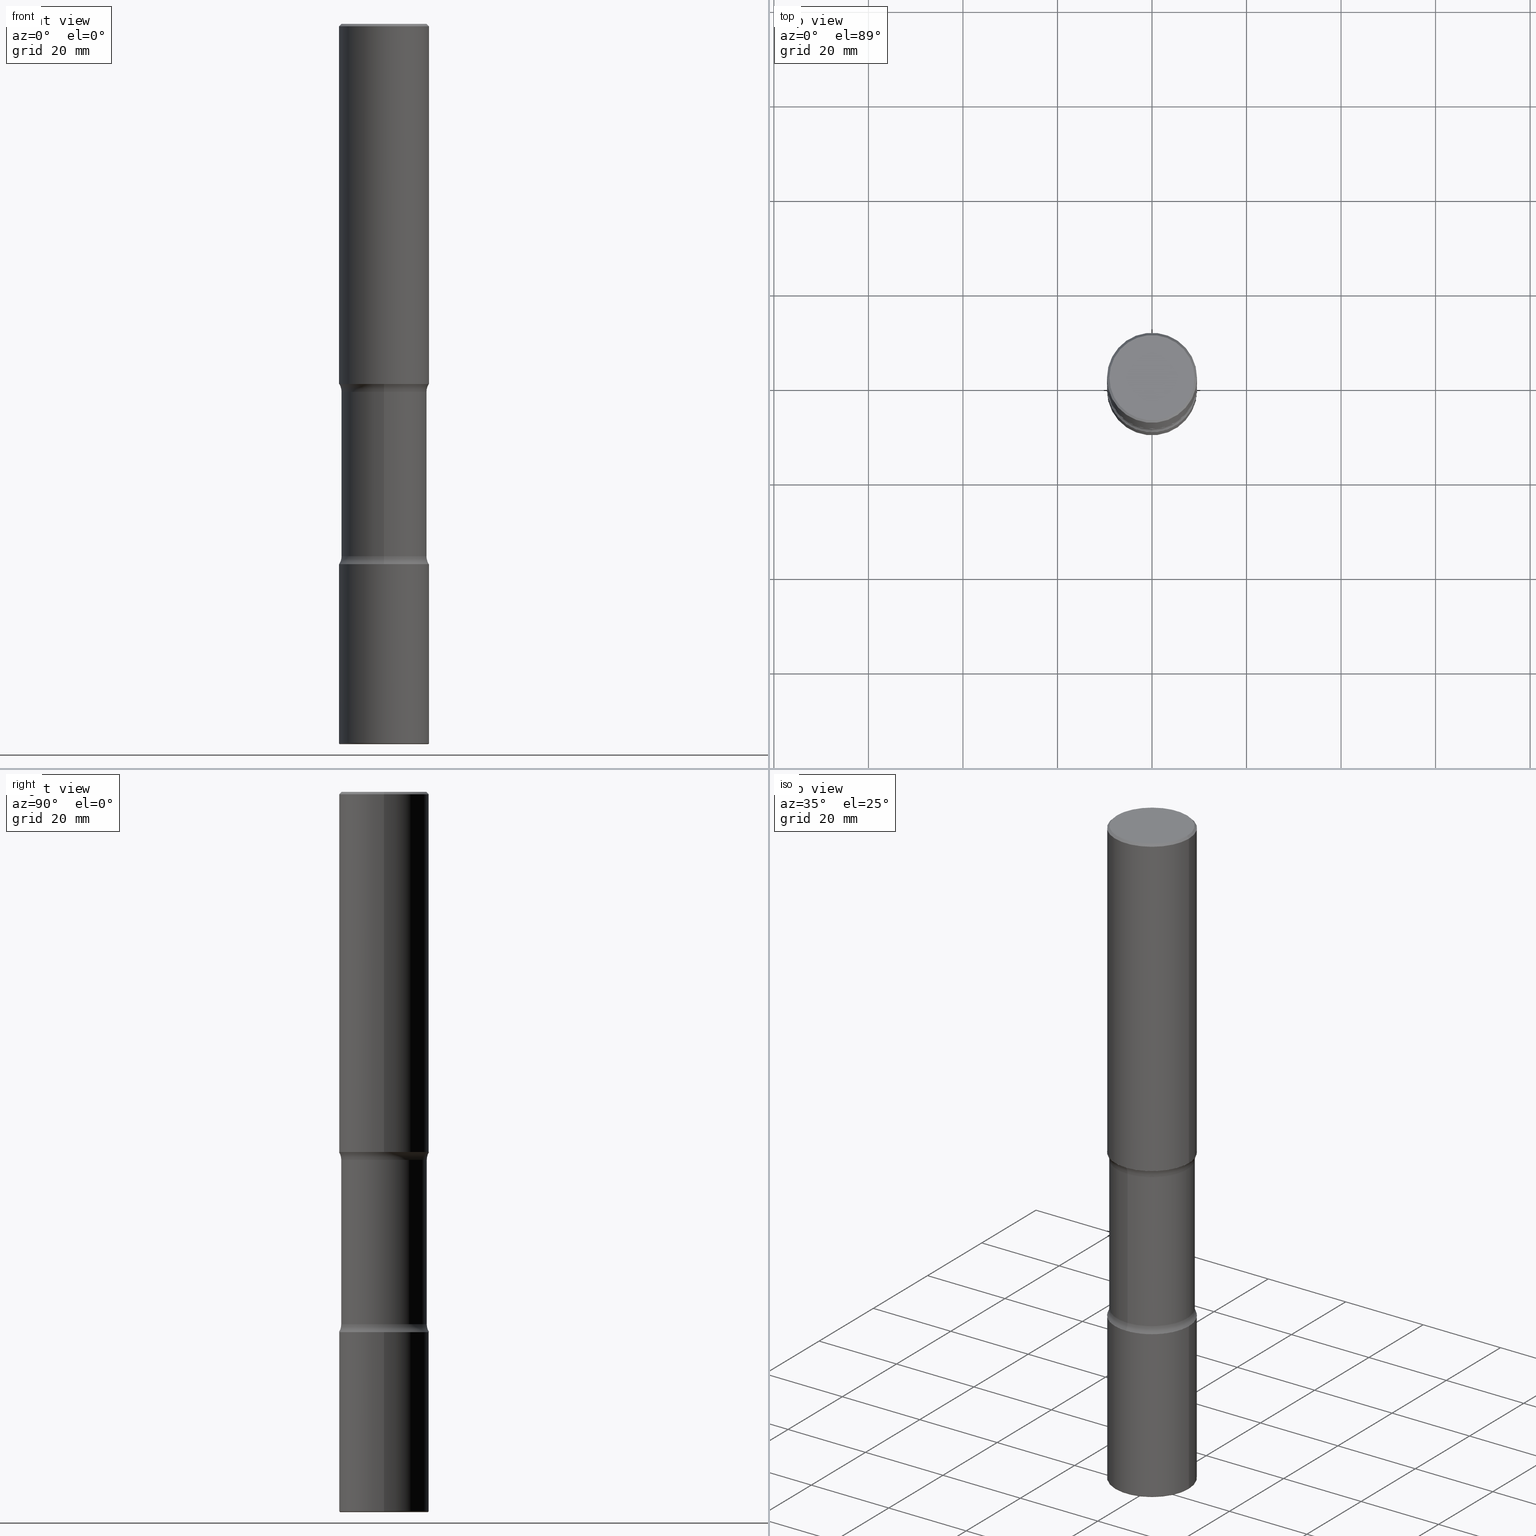
[diagram: canonical four-view strip — front | top / right | iso, engineering-drawing reading convention]
A machine part, canonical four-view strip (front | top / right | iso — engineering-drawing reading convention). The complete STEP part file that produces these views, byte-faithful:
ISO-10303-21;
HEADER;
FILE_DESCRIPTION (( 'STEP AP203' ),
    '1' );
FILE_NAME ('37928.STEP',
    '2024-03-02T01:28:42',
    ( '' ),
    ( '' ),
    'SwSTEP 2.0',
    'SolidWorks 2023',
    '' );
FILE_SCHEMA (( 'CONFIG_CONTROL_DESIGN' ));
ENDSEC;

DATA;
#1 = EDGE_CURVE ( 'NONE', #549, #436, #395, .T. ) ;
#2 = DIRECTION ( 'NONE',  ( 2.508247471065963170E-29, -3.401578717594097873E-15, -1.000000000000000000 ) ) ;
#3 = DIRECTION ( 'NONE',  ( 2.445468806185136597E-29, -3.491481338843145583E-15, -1.000000000000000000 ) ) ;
#4 = DIRECTION ( 'NONE',  ( -2.445468806185136597E-29, 3.491481338843145583E-15, 1.000000000000000000 ) ) ;
#5 = FACE_OUTER_BOUND ( 'NONE', #156, .T. ) ;
#6 = ADVANCED_FACE ( 'NONE', ( #363 ), #288, .F. ) ;
#7 = CIRCLE ( 'NONE', #439, 0.3750000000000001110 ) ;
#8 = LOCAL_TIME ( 20, 28, 42.00000000000000000, #30 ) ;
#9 = PERSON ( 'UNSPECIFIED', 'UNSPECIFIED', 'UNSPECIFIED', ('UNSPECIFIED'), ('UNSPECIFIED'), ('UNSPECIFIED') ) ;
#10 = CARTESIAN_POINT ( 'NONE',  ( 7.402053284434616373E-29, -1.084094290665388719E-14, -3.065847835955329614 ) ) ;
#11 = DIRECTION ( 'NONE',  ( 1.000000000000000000, -6.982962677686265922E-15, 0.000000000000000000 ) ) ;
#12 = CARTESIAN_POINT ( 'NONE',  ( 7.336406418555407548E-29, -1.047444401652943320E-14, -2.999999999999999112 ) ) ;
#13 = ORIENTED_EDGE ( 'NONE', *, *, #516, .F. ) ;
#14 = DIRECTION ( 'NONE',  ( 2.508247471065963170E-29, -3.401578717594097873E-15, -1.000000000000000000 ) ) ;
#15 = FACE_OUTER_BOUND ( 'NONE', #211, .T. ) ;
#16 = AXIS2_PLACEMENT_3D ( 'NONE', #155, #536, #325 ) ;
#17 = CC_DESIGN_APPROVAL ( #367, ( #468 ) ) ;
#18 = DIRECTION ( 'NONE',  ( 6.982962677686265133E-15, 1.000000000000000000, -3.067338098149347905E-15 ) ) ;
#19 = VERTEX_POINT ( 'NONE', #275 ) ;
#20 = ORIENTED_EDGE ( 'NONE', *, *, #39, .F. ) ;
#21 = CARTESIAN_POINT ( 'NONE',  ( -0.3750000000000003886, -1.564828436313191776E-14, -4.499999999999999112 ) ) ;
#22 = ORIENTED_EDGE ( 'NONE', *, *, #58, .F. ) ;
#23 = MANIFOLD_SOLID_BREP ( 'Body-Move/Copy2[2]', #177 ) ;
#24 = DATE_AND_TIME ( #464, #88 ) ;
#25 = DIRECTION ( 'NONE',  ( 1.000000000000000000, -6.982962677686266711E-15, 4.883557194083113462E-29 ) ) ;
#26 = ORIENTED_EDGE ( 'NONE', *, *, #49, .F. ) ;
#27 = ORIENTED_EDGE ( 'NONE', *, *, #39, .T. ) ;
#28 = AXIS2_PLACEMENT_3D ( 'NONE', #414, #203, #18 ) ;
#29 = AXIS2_PLACEMENT_3D ( 'NONE', #135, #272, #558 ) ;
#30 = COORDINATED_UNIVERSAL_TIME_OFFSET ( 5, 0, .BEHIND. ) ;
#31 = PLANE ( 'NONE',  #117 ) ;
#32 = ORIENTED_EDGE ( 'NONE', *, *, #157, .T. ) ;
#33 = ORIENTED_EDGE ( 'NONE', *, *, #173, .F. ) ;
#34 = CALENDAR_DATE ( 2024, 1, 3 ) ;
#35 = CYLINDRICAL_SURFACE ( 'NONE', #323, 0.3750000000000003886 ) ;
#36 = ORIENTED_EDGE ( 'NONE', *, *, #162, .T. ) ;
#37 = LINE ( 'NONE', #67, #48 ) ;
#38 = ORIENTED_EDGE ( 'NONE', *, *, #556, .T. ) ;
#39 = EDGE_CURVE ( 'NONE', #382, #310, #102, .T. ) ;
#40 = CIRCLE ( 'NONE', #28, 0.3562500000000000111 ) ;
#41 = APPROVAL_DATE_TIME ( #503, #367 ) ;
#42 = AXIS2_PLACEMENT_3D ( 'NONE', #217, #261, #540 ) ;
#43 = EDGE_LOOP ( 'NONE', ( #508, #534, #158, #297 ) ) ;
#44 = ORIENTED_EDGE ( 'NONE', *, *, #357, .T. ) ;
#45 = APPLICATION_PROTOCOL_DEFINITION ( 'international standard', 'config_control_design', 1994, #401 ) ;
#46 = ORIENTED_EDGE ( 'NONE', *, *, #214, .T. ) ;
#47 = AXIS2_PLACEMENT_3D ( 'NONE', #10, #446, #64 ) ;
#48 = VECTOR ( 'NONE', #377, 39.37007874015748143 ) ;
#49 = EDGE_CURVE ( 'NONE', #152, #186, #314, .T. ) ;
#50 = EDGE_LOOP ( 'NONE', ( #336, #451, #542, #22 ) ) ;
#51 = VERTEX_POINT ( 'NONE', #399 ) ;
#52 = ADVANCED_FACE ( 'NONE', ( #5 ), #193, .T. ) ;
#53 = DIRECTION ( 'NONE',  ( 6.982962677686265922E-15, 1.000000000000000000, -3.401578717594097873E-15 ) ) ;
#54 = CIRCLE ( 'NONE', #479, 0.3750000000000003886 ) ;
#55 = DIRECTION ( 'NONE',  ( -2.445468806185136597E-29, 3.491481338843145583E-15, 1.000000000000000000 ) ) ;
#56 = ORIENTED_EDGE ( 'NONE', *, *, #393, .T. ) ;
#57 = DIRECTION ( 'NONE',  ( -2.445468806185136597E-29, 3.491481338843145583E-15, 1.000000000000000000 ) ) ;
#58 = EDGE_CURVE ( 'NONE', #76, #186, #7, .T. ) ;
#59 = DIRECTION ( 'NONE',  ( -2.445468806185136597E-29, 3.491481338843145583E-15, 1.000000000000000000 ) ) ;
#60 = DIRECTION ( 'NONE',  ( 2.508247471065962609E-29, -3.401578717594097873E-15, -1.000000000000000000 ) ) ;
#61 = EDGE_CURVE ( 'NONE', #436, #251, #541, .T. ) ;
#62 = DIRECTION ( 'NONE',  ( 6.860497997771531562E-15, 1.000000000000000000, 0.000000000000000000 ) ) ;
#63 = ORIENTED_EDGE ( 'NONE', *, *, #489, .T. ) ;
#64 = DIRECTION ( 'NONE',  ( 6.982962677686265922E-15, 1.000000000000000000, -3.401578717594097873E-15 ) ) ;
#65 = AXIS2_PLACEMENT_3D ( 'NONE', #95, #373, #320 ) ;
#66 = DIRECTION ( 'NONE',  ( 6.982962677686265133E-15, 1.000000000000000000, -3.067338098149347905E-15 ) ) ;
#67 = CARTESIAN_POINT ( 'NONE',  ( 0.3750000000000003886, -2.618611004132352383E-15, 1.828566290923477884E-29 ) ) ;
#68 = LINE ( 'NONE', #250, #221 ) ;
#69 = CALENDAR_DATE ( 2024, 1, 3 ) ;
#70 = DIRECTION ( 'NONE',  ( 2.438088387897960049E-29, -3.491481338843145188E-15, -1.000000000000000000 ) ) ;
#71 = ORIENTED_EDGE ( 'NONE', *, *, #58, .T. ) ;
#72 = ORIENTED_EDGE ( 'NONE', *, *, #98, .F. ) ;
#73 = EDGE_CURVE ( 'NONE', #436, #549, #509, .T. ) ;
#74 = PERSON_AND_ORGANIZATION_ROLE ( 'creator' ) ;
#75 = DIRECTION ( 'NONE',  ( -2.445468806185136597E-29, 3.491481338843145583E-15, 1.000000000000000000 ) ) ;
#76 = VERTEX_POINT ( 'NONE', #106 ) ;
#77 = AXIS2_PLACEMENT_3D ( 'NONE', #277, #55, #236 ) ;
#78 = PERSON_AND_ORGANIZATION ( #9, #127 ) ;
#79 = ADVANCED_FACE ( 'NONE', ( #450 ), #282, .F. ) ;
#80 = CARTESIAN_POINT ( 'NONE',  ( -0.3750000000000002220, 2.664535259100377275E-15, -1.844600658845590719E-29 ) ) ;
#81 = EDGE_CURVE ( 'NONE', #368, #51, #153, .T. ) ;
#82 = FACE_OUTER_BOUND ( 'NONE', #287, .T. ) ;
#83 = ORIENTED_EDGE ( 'NONE', *, *, #90, .F. ) ;
#84 = MECHANICAL_CONTEXT ( 'NONE', #401, 'mechanical' ) ;
#85 = CARTESIAN_POINT ( 'NONE',  ( -2.508369580435107128E-15, -0.3562500000000154987, -4.434152164044668609 ) ) ;
#86 = CARTESIAN_POINT ( 'NONE',  ( 1.467281283711081958E-28, -2.094888803305887271E-14, -6.000000000000000888 ) ) ;
#87 = VECTOR ( 'NONE', #229, 39.37007874015748143 ) ;
#88 = LOCAL_TIME ( 20, 28, 42.00000000000000000, #379 ) ;
#89 = DIRECTION ( 'NONE',  ( -6.982962677686266711E-15, -1.000000000000000000, 3.491481338843145583E-15 ) ) ;
#90 = EDGE_CURVE ( 'NONE', #408, #445, #366, .T. ) ;
#91 = CARTESIAN_POINT ( 'NONE',  ( 7.407401089244291879E-29, -1.083328454578828421E-14, -3.065847835955329614 ) ) ;
#92 = PRODUCT_RELATED_PRODUCT_CATEGORY ( 'detail', '', ( #197 ) ) ;
#93 = EDGE_CURVE ( 'NONE', #207, #388, #403, .T. ) ;
#94 = DIRECTION ( 'NONE',  ( 1.000000000000000000, -6.982962677686266711E-15, 4.876176775795935793E-29 ) ) ;
#95 = CARTESIAN_POINT ( 'NONE',  ( 1.467281283711081958E-28, -2.094888803305887271E-14, -6.000000000000000888 ) ) ;
#96 = AXIS2_PLACEMENT_3D ( 'NONE', #527, #238, #53 ) ;
#97 = AXIS2_PLACEMENT_3D ( 'NONE', #220, #123, #255 ) ;
#98 = EDGE_CURVE ( 'NONE', #494, #505, #291, .T. ) ;
#99 = FACE_OUTER_BOUND ( 'NONE', #50, .T. ) ;
#100 = CARTESIAN_POINT ( 'NONE',  ( 0.000000000000000000, 0.000000000000000000, 0.000000000000000000 ) ) ;
#101 = CARTESIAN_POINT ( 'NONE',  ( 0.000000000000000000, 0.000000000000000000, 0.000000000000000000 ) ) ;
#102 = LINE ( 'NONE', #356, #187 ) ;
#103 = AXIS2_PLACEMENT_3D ( 'NONE', #538, #243, #412 ) ;
#104 = LOCAL_TIME ( 20, 28, 42.00000000000000000, #130 ) ;
#105 = DIRECTION ( 'NONE',  ( 1.000000000000000000, -6.982962677686266711E-15, 4.876176775795935793E-29 ) ) ;
#106 = CARTESIAN_POINT ( 'NONE',  ( -0.3750000000000001110, 2.548781377355487113E-15, -0.02000000000000006981 ) ) ;
#107 = ORIENTED_EDGE ( 'NONE', *, *, #214, .F. ) ;
#108 = EDGE_CURVE ( 'NONE', #431, #76, #68, .T. ) ;
#109 = FACE_OUTER_BOUND ( 'NONE', #199, .T. ) ;
#110 = ORIENTED_EDGE ( 'NONE', *, *, #489, .F. ) ;
#111 = DIRECTION ( 'NONE',  ( -2.445468806185136597E-29, 3.491481338843145583E-15, 1.000000000000000000 ) ) ;
#112 = ORIENTED_EDGE ( 'NONE', *, *, #61, .T. ) ;
#113 = DESIGN_CONTEXT ( 'detailed design', #458, 'design' ) ;
#114 = CLOSED_SHELL ( 'NONE', ( #52, #241, #169, #6, #79, #278, #259, #420 ) ) ;
#115 = DIRECTION ( 'NONE',  ( 1.000000000000000000, -6.982962677686267499E-15, 0.000000000000000000 ) ) ;
#116 = CIRCLE ( 'NONE', #29, 0.3750000000000003886 ) ;
#117 = AXIS2_PLACEMENT_3D ( 'NONE', #513, #70, #302 ) ;
#118 = APPLICATION_PROTOCOL_DEFINITION ( 'international standard', 'config_control_design', 1994, #458 ) ;
#119 = DIRECTION ( 'NONE',  ( -2.445468806185136597E-29, 3.491481338843145583E-15, 1.000000000000000000 ) ) ;
#120 = ORIENTED_EDGE ( 'NONE', *, *, #283, .T. ) ;
#121 = ADVANCED_FACE ( 'NONE', ( #148 ), #488, .T. ) ;
#122 = PERSON_AND_ORGANIZATION_ROLE ( 'design_supplier' ) ;
#123 = DIRECTION ( 'NONE',  ( 2.508247471065963170E-29, -3.401578717594097873E-15, -1.000000000000000000 ) ) ;
#124 = DATE_AND_TIME ( #34, #469 ) ;
#125 = CARTESIAN_POINT ( 'NONE',  ( 2.618611004132426142E-15, 0.3749999999999898415, -3.000000000000000444 ) ) ;
#126 = TOROIDAL_SURFACE ( 'NONE', #47, 0.4812499999999999556, 0.1249999999999999584 ) ;
#127 = ORGANIZATION ( 'UNSPECIFIED', 'UNSPECIFIED', '' ) ;
#128 = DIRECTION ( 'NONE',  ( 1.000000000000000000, -6.982962677686265922E-15, 0.000000000000000000 ) ) ;
#129 = ORIENTED_EDGE ( 'NONE', *, *, #437, .F. ) ;
#130 = COORDINATED_UNIVERSAL_TIME_OFFSET ( 5, 0, .BEHIND. ) ;
#131 = CARTESIAN_POINT ( 'NONE',  ( 7.407401089244291879E-29, -1.083328454578828421E-14, -3.065847835955329614 ) ) ;
#132 = ORIENTED_EDGE ( 'NONE', *, *, #224, .F. ) ;
#133 = ORIENTED_EDGE ( 'NONE', *, *, #393, .F. ) ;
#134 = CC_DESIGN_DATE_AND_TIME_ASSIGNMENT ( #124, #252, ( #425 ) ) ;
#135 = CARTESIAN_POINT ( 'NONE',  ( 7.336406418555407548E-29, -1.047444401652943320E-14, -2.999999999999999112 ) ) ;
#136 = CARTESIAN_POINT ( 'NONE',  ( 0.000000000000000000, 0.000000000000000000, 0.000000000000000000 ) ) ;
#137 = TOROIDAL_SURFACE ( 'NONE', #77, 0.3650000000000003242, 0.01000000000000061083 ) ;
#138 = CIRCLE ( 'NONE', #145, 0.3750000000000002776 ) ;
#139 = CARTESIAN_POINT ( 'NONE',  ( 1.100460962783311244E-28, -1.571166602479415374E-14, -4.499999999999999112 ) ) ;
#140 = DIRECTION ( 'NONE',  ( -1.000000000000000000, 6.982962677686265922E-15, -4.876176775795935793E-29 ) ) ;
#141 = EDGE_LOOP ( 'NONE', ( #347, #32 ) ) ;
#142 = ADVANCED_FACE ( 'NONE', ( #268 ), #146, .T. ) ;
#143 = DIRECTION ( 'NONE',  ( -2.445468806185136877E-29, 3.491481338843145188E-15, 1.000000000000000000 ) ) ;
#144 = CIRCLE ( 'NONE', #342, 0.3750000000000003886 ) ;
#145 = AXIS2_PLACEMENT_3D ( 'NONE', #521, #438, #354 ) ;
#146 = CYLINDRICAL_SURFACE ( 'NONE', #484, 0.3750000000000003886 ) ;
#147 = DIRECTION ( 'NONE',  ( 2.508247471065963170E-29, -3.401578717594097873E-15, -1.000000000000000000 ) ) ;
#148 = FACE_OUTER_BOUND ( 'NONE', #183, .T. ) ;
#149 = ORIENTED_EDGE ( 'NONE', *, *, #496, .F. ) ;
#150 = CARTESIAN_POINT ( 'NONE',  ( 0.3750000000000006661, -2.353258422380279265E-14, -5.989999999999999325 ) ) ;
#151 = EDGE_CURVE ( 'NONE', #505, #445, #520, .T. ) ;
#152 = VERTEX_POINT ( 'NONE', #154 ) ;
#153 = CIRCLE ( 'NONE', #103, 0.3750000000000003886 ) ;
#154 = CARTESIAN_POINT ( 'NONE',  ( 0.3550000000000000377, -2.538996582575041048E-15, 4.268512490117958041E-18 ) ) ;
#155 = CARTESIAN_POINT ( 'NONE',  ( 7.242238421234168109E-29, -1.060929794840300496E-14, -2.999999999999999112 ) ) ;
#156 = EDGE_LOOP ( 'NONE', ( #38, #419, #245, #83 ) ) ;
#157 = EDGE_CURVE ( 'NONE', #51, #368, #352, .T. ) ;
#158 = ORIENTED_EDGE ( 'NONE', *, *, #151, .T. ) ;
#159 = DIRECTION ( 'NONE',  ( 2.508247471065963170E-29, -3.401578717594097873E-15, -1.000000000000000000 ) ) ;
#160 = CARTESIAN_POINT ( 'NONE',  ( -2.572686749164255311E-15, -0.3750000000000111577, -2.999999999999998224 ) ) ;
#161 = CARTESIAN_POINT ( 'NONE',  ( -2.444052411705960129E-15, -0.3562500000000208278, -5.999999999999998224 ) ) ;
#162 = EDGE_CURVE ( 'NONE', #368, #445, #201, .T. ) ;
#163 = DIRECTION ( 'NONE',  ( 1.000000000000000000, -6.982962677686265922E-15, 0.000000000000000000 ) ) ;
#164 = EDGE_LOOP ( 'NONE', ( #512, #27, #176, #292 ) ) ;
#165 = AXIS2_PLACEMENT_3D ( 'NONE', #447, #60, #239 ) ;
#166 = CARTESIAN_POINT ( 'NONE',  ( 3.360550788636589613E-15, 0.4812499999999890754, -3.065847835955331391 ) ) ;
#167 = AXIS2_PLACEMENT_3D ( 'NONE', #249, #260, #544 ) ;
#168 = COORDINATED_UNIVERSAL_TIME_OFFSET ( 5, 0, .BEHIND. ) ;
#169 = ADVANCED_FACE ( 'NONE', ( #407 ), #126, .F. ) ;
#170 = DIRECTION ( 'NONE',  ( -2.445468806185136597E-29, 3.491481338843145583E-15, 1.000000000000000000 ) ) ;
#171 = CC_DESIGN_PERSON_AND_ORGANIZATION_ASSIGNMENT ( #344, #122, ( #315 ) ) ;
#172 = VERTEX_POINT ( 'NONE', #319 ) ;
#173 = EDGE_CURVE ( 'NONE', #507, #172, #369, .T. ) ;
#174 = DATE_TIME_ROLE ( 'creation_date' ) ;
#175 = CARTESIAN_POINT ( 'NONE',  ( 2.618611004132461246E-15, 0.3749999999999845124, -4.500000000000000888 ) ) ;
#176 = ORIENTED_EDGE ( 'NONE', *, *, #441, .F. ) ;
#177 = CLOSED_SHELL ( 'NONE', ( #121, #547, #301, #410, #345, #262 ) ) ;
#178 = LOCAL_TIME ( 20, 28, 42.00000000000000000, #389 ) ;
#179 = PERSON_AND_ORGANIZATION ( #9, #127 ) ;
#180 = ORIENTED_EDGE ( 'NONE', *, *, #476, .F. ) ;
#181 = APPROVAL_STATUS ( 'not_yet_approved' ) ;
#182 = LINE ( 'NONE', #270, #353 ) ;
#183 = EDGE_LOOP ( 'NONE', ( #329, #285, #514, #13 ) ) ;
#184 = ADVANCED_FACE ( 'NONE', ( #109 ), #449, .T. ) ;
#185 = CARTESIAN_POINT ( 'NONE',  ( 4.890937612370289799E-31, -6.982962677686315028E-17, -0.02000000000000006981 ) ) ;
#186 = VERTEX_POINT ( 'NONE', #284 ) ;
#187 = VECTOR ( 'NONE', #143, 39.37007874015748143 ) ;
#188 = APPROVAL_PERSON_ORGANIZATION ( #219, #523, #349 ) ;
#189 = CARTESIAN_POINT ( 'NONE',  ( 2.487680453925840195E-15, 0.3562499999999844680, -4.434152164044670386 ) ) ;
#190 = EDGE_CURVE ( 'NONE', #445, #505, #40, .T. ) ;
#191 = DIRECTION ( 'NONE',  ( 6.982962677686265922E-15, 1.000000000000000000, -3.401578717594097873E-15 ) ) ;
#192 = ORIENTED_EDGE ( 'NONE', *, *, #355, .T. ) ;
#193 = CYLINDRICAL_SURFACE ( 'NONE', #375, 0.3562500000000000111 ) ;
#194 = AXIS2_PLACEMENT_3D ( 'NONE', #100, #111, #105 ) ;
#195 = AXIS2_PLACEMENT_3D ( 'NONE', #337, #551, #515 ) ;
#196 = CARTESIAN_POINT ( 'NONE',  ( -3.301614661427441806E-15, -0.4812500000000156097, -4.434152164044668609 ) ) ;
#197 = PRODUCT ( '37928', '37928', '', ( #84 ) ) ;
#198 = DIRECTION ( 'NONE',  ( 1.000000000000000000, -6.860497997771530774E-15, 4.841899869197618814E-29 ) ) ;
#199 = EDGE_LOOP ( 'NONE', ( #387, #539 ) ) ;
#200 = DIRECTION ( 'NONE',  ( -1.000000000000000000, 6.982962677686265922E-15, -4.883557194083112901E-29 ) ) ;
#201 = CIRCLE ( 'NONE', #385, 0.1249999999999998335 ) ;
#202 = CIRCLE ( 'NONE', #370, 0.3750000000000001110 ) ;
#203 = DIRECTION ( 'NONE',  ( 2.508247471065963170E-29, -3.401578717594097873E-15, -1.000000000000000000 ) ) ;
#204 = ORIENTED_EDGE ( 'NONE', *, *, #49, .T. ) ;
#205 = EDGE_CURVE ( 'NONE', #51, #505, #234, .T. ) ;
#206 = DIRECTION ( 'NONE',  ( -2.445468806185136597E-29, 3.491481338843145583E-15, 1.000000000000000000 ) ) ;
#207 = VERTEX_POINT ( 'NONE', #160 ) ;
#208 = APPROVAL_DATE_TIME ( #24, #523 ) ;
#209 = LINE ( 'NONE', #80, #311 ) ;
#210 = ORIENTED_EDGE ( 'NONE', *, *, #190, .T. ) ;
#211 = EDGE_LOOP ( 'NONE', ( #427, #452, #36, #210 ) ) ;
#212 = CARTESIAN_POINT ( 'NONE',  ( 1.476698083443205790E-28, -2.081403410118529621E-14, -5.999999999999999112 ) ) ;
#213 = APPROVAL_DATE_TIME ( #258, #400 ) ;
#214 = EDGE_CURVE ( 'NONE', #494, #207, #525, .T. ) ;
#215 = FACE_OUTER_BOUND ( 'NONE', #423, .T. ) ;
#216 = SHAPE_DEFINITION_REPRESENTATION ( #526, #477 ) ;
#217 = CARTESIAN_POINT ( 'NONE',  ( -1.043851414335219820E-46, 1.490343170380447200E-32, 4.268512490100411279E-18 ) ) ;
#218 = ORIENTED_EDGE ( 'NONE', *, *, #90, .T. ) ;
#219 = PERSON_AND_ORGANIZATION ( #9, #127 ) ;
#220 = CARTESIAN_POINT ( 'NONE',  ( 1.476698083443205790E-28, -2.081403410118529621E-14, -5.999999999999999112 ) ) ;
#221 = VECTOR ( 'NONE', #418, 39.37007874015748143 ) ;
#222 = CALENDAR_DATE ( 2024, 1, 3 ) ;
#223 = DIRECTION ( 'NONE',  ( -2.445468806185136877E-29, 3.491481338843145188E-15, 1.000000000000000000 ) ) ;
#224 = EDGE_CURVE ( 'NONE', #310, #19, #144, .T. ) ;
#225 = DIRECTION ( 'NONE',  ( 2.508247471065963170E-29, -3.401578717594097873E-15, -1.000000000000000000 ) ) ;
#226 = VECTOR ( 'NONE', #498, 39.37007874015748143 ) ;
#227 = AXIS2_PLACEMENT_3D ( 'NONE', #185, #3, #346 ) ;
#228 =( CONVERSION_BASED_UNIT ( 'INCH', #313 ) LENGTH_UNIT ( ) NAMED_UNIT ( #409 ) );
#229 = DIRECTION ( 'NONE',  ( 0.7071067811865472397, -7.319954787623254468E-15, -0.7071067811865477948 ) ) ;
#230 = MANIFOLD_SOLID_BREP ( 'Body-Move/Copy2[1]', #298 ) ;
#231 = FACE_OUTER_BOUND ( 'NONE', #141, .T. ) ;
#232 = CARTESIAN_POINT ( 'NONE',  ( 4.890937612370289799E-31, -6.982962677686315028E-17, -0.02000000000000006981 ) ) ;
#233 = CC_DESIGN_PERSON_AND_ORGANIZATION_ASSIGNMENT ( #543, #295, ( #425 ) ) ;
#234 = CIRCLE ( 'NONE', #273, 0.1249999999999998335 ) ;
#235 = CIRCLE ( 'NONE', #396, 0.3550000000000000377 ) ;
#236 = DIRECTION ( 'NONE',  ( 1.000000000000000000, -6.982962677686266711E-15, 4.883557194083113462E-29 ) ) ;
#237 = ORIENTED_EDGE ( 'NONE', *, *, #93, .T. ) ;
#238 = DIRECTION ( 'NONE',  ( 2.508247471065963170E-29, -3.401578717594097873E-15, -1.000000000000000000 ) ) ;
#239 = DIRECTION ( 'NONE',  ( 6.982962677686265922E-15, 1.000000000000000000, -3.401578717594097873E-15 ) ) ;
#240 = ORIENTED_EDGE ( 'NONE', *, *, #441, .T. ) ;
#241 = ADVANCED_FACE ( 'NONE', ( #442 ), #478, .F. ) ;
#242 = CARTESIAN_POINT ( 'NONE',  ( -3.301614661427474544E-15, -0.4812500000000108358, -3.065847835955327838 ) ) ;
#243 = DIRECTION ( 'NONE',  ( 2.508247471065963170E-29, -3.401578717594097873E-15, -1.000000000000000000 ) ) ;
#244 = EDGE_LOOP ( 'NONE', ( #180, #341, #112, #518 ) ) ;
#245 = ORIENTED_EDGE ( 'NONE', *, *, #190, .F. ) ;
#246 = CIRCLE ( 'NONE', #550, 0.1249999999999999584 ) ;
#247 = AXIS2_PLACEMENT_3D ( 'NONE', #131, #225, #394 ) ;
#248 = DIRECTION ( 'NONE',  ( -1.000000000000000000, 6.982962677686265922E-15, -4.876176775795935793E-29 ) ) ;
#249 = CARTESIAN_POINT ( 'NONE',  ( 7.336406418555407548E-29, -1.047444401652943320E-14, -2.999999999999999112 ) ) ;
#250 = CARTESIAN_POINT ( 'NONE',  ( -0.3750000000000001110, 2.548781377355487113E-15, -0.02000000000000006981 ) ) ;
#251 = VERTEX_POINT ( 'NONE', #150 ) ;
#252 = DATE_TIME_ROLE ( 'classification_date' ) ;
#253 = FACE_OUTER_BOUND ( 'NONE', #265, .T. ) ;
#254 = AXIS2_PLACEMENT_3D ( 'NONE', #486, #2, #191 ) ;
#255 = DIRECTION ( 'NONE',  ( 6.982962677686265133E-15, 1.000000000000000000, -3.067338098149347905E-15 ) ) ;
#256 = CC_DESIGN_SECURITY_CLASSIFICATION ( #425, ( #315 ) ) ;
#257 = ORIENTED_EDGE ( 'NONE', *, *, #415, .T. ) ;
#258 = DATE_AND_TIME ( #222, #8 ) ;
#259 = ADVANCED_FACE ( 'NONE', ( #15 ), #322, .F. ) ;
#260 = DIRECTION ( 'NONE',  ( -2.438088387897960049E-29, 3.491481338843145188E-15, 1.000000000000000000 ) ) ;
#261 = DIRECTION ( 'NONE',  ( -2.445468806185136597E-29, 3.491481338843145583E-15, 1.000000000000000000 ) ) ;
#262 = ADVANCED_FACE ( 'NONE', ( #99 ), #495, .T. ) ;
#263 = DATE_AND_TIME ( #69, #178 ) ;
#264 = CONICAL_SURFACE ( 'NONE', #499, 0.3750000000000001110, 0.7853981633974479459 ) ;
#265 = EDGE_LOOP ( 'NONE', ( #339, #348, #350, #328 ) ) ;
#266 = APPROVAL_PERSON_ORGANIZATION ( #421, #400, #473 ) ;
#267 = DIRECTION ( 'NONE',  ( 1.000000000000000000, -6.982962677686265922E-15, 0.000000000000000000 ) ) ;
#268 = FACE_OUTER_BOUND ( 'NONE', #472, .T. ) ;
#269 = ADVANCED_FACE ( 'NONE', ( #535 ), #137, .T. ) ;
#270 = CARTESIAN_POINT ( 'NONE',  ( 0.3750000000000002220, -2.618611004132351594E-15, 1.828566290923477043E-29 ) ) ;
#271 = CC_DESIGN_PERSON_AND_ORGANIZATION_ASSIGNMENT ( #78, #74, ( #468 ) ) ;
#272 = DIRECTION ( 'NONE',  ( -2.445468806185136597E-29, 3.491481338843145583E-15, 1.000000000000000000 ) ) ;
#273 = AXIS2_PLACEMENT_3D ( 'NONE', #196, #198, #62 ) ;
#274 = CIRCLE ( 'NONE', #552, 0.01000000000000057614 ) ;
#275 = CARTESIAN_POINT ( 'NONE',  ( 0.3750000000000003886, -1.833027702892650691E-14, -4.499999999999999112 ) ) ;
#276 = DIRECTION ( 'NONE',  ( -6.982962677686268288E-15, -1.000000000000000000, 0.000000000000000000 ) ) ;
#277 = CARTESIAN_POINT ( 'NONE',  ( 1.464835814904896579E-28, -2.091397321967043948E-14, -5.989999999999999325 ) ) ;
#278 = ADVANCED_FACE ( 'NONE', ( #231 ), #321, .F. ) ;
#279 = AXIS2_PLACEMENT_3D ( 'NONE', #12, #372, #411 ) ;
#280 = AXIS2_PLACEMENT_3D ( 'NONE', #386, #383, #290 ) ;
#281 = CARTESIAN_POINT ( 'NONE',  ( 1.100460962783311244E-28, -1.571166602479415374E-14, -4.499999999999999112 ) ) ;
#282 = PLANE ( 'NONE',  #165 ) ;
#283 = EDGE_CURVE ( 'NONE', #408, #388, #246, .T. ) ;
#284 = CARTESIAN_POINT ( 'NONE',  ( 0.3750000000000001110, -2.642516375941188423E-15, -0.02000000000000006981 ) ) ;
#285 = ORIENTED_EDGE ( 'NONE', *, *, #317, .T. ) ;
#286 = CARTESIAN_POINT ( 'NONE',  ( 1.083944695982298980E-28, -1.548767942740887449E-14, -4.434152164044669497 ) ) ;
#287 = EDGE_LOOP ( 'NONE', ( #149, #33 ) ) ;
#288 = TOROIDAL_SURFACE ( 'NONE', #254, 0.4812499999999999556, 0.1249999999999999584 ) ;
#289 = TOROIDAL_SURFACE ( 'NONE', #533, 0.3650000000000003242, 0.01000000000000061083 ) ;
#290 = DIRECTION ( 'NONE',  ( 6.982962677686266711E-15, 1.000000000000000000, -2.913971193241876822E-15 ) ) ;
#291 = LINE ( 'NONE', #161, #443 ) ;
#292 = ORIENTED_EDGE ( 'NONE', *, *, #415, .F. ) ;
#293 = APPROVAL_ROLE ( '' ) ;
#294 = CARTESIAN_POINT ( 'NONE',  ( 1.464835814904896579E-28, -2.091397321967043948E-14, -5.989999999999999325 ) ) ;
#295 = PERSON_AND_ORGANIZATION_ROLE ( 'classification_officer' ) ;
#296 = CARTESIAN_POINT ( 'NONE',  ( 4.890937612370289799E-31, -6.982962677686315028E-17, -0.02000000000000006981 ) ) ;
#297 = ORIENTED_EDGE ( 'NONE', *, *, #162, .F. ) ;
#298 = CLOSED_SHELL ( 'NONE', ( #390, #381, #184, #269, #142, #461 ) ) ;
#299 = CARTESIAN_POINT ( 'NONE',  ( -0.3550000000000000377, 2.513866563967055858E-15, 4.268512490082953109E-18 ) ) ;
#300 = EDGE_LOOP ( 'NONE', ( #480, #316 ) ) ;
#301 = ADVANCED_FACE ( 'NONE', ( #215 ), #264, .T. ) ;
#302 = DIRECTION ( 'NONE',  ( -1.000000000000000000, 6.982962677686265922E-15, -4.876176775795935793E-29 ) ) ;
#303 = EDGE_LOOP ( 'NONE', ( #475, #56 ) ) ;
#304 = APPROVAL_STATUS ( 'not_yet_approved' ) ;
#305 = EDGE_CURVE ( 'NONE', #388, #207, #358, .T. ) ;
#306 = CARTESIAN_POINT ( 'NONE',  ( -0.3650000000000003242, -1.830242250405228780E-14, -6.000000000000000888 ) ) ;
#307 = ORIENTED_EDGE ( 'NONE', *, *, #151, .F. ) ;
#308 =( NAMED_UNIT ( * ) PLANE_ANGLE_UNIT ( ) SI_UNIT ( $, .RADIAN. ) );
#309 = AXIS2_PLACEMENT_3D ( 'NONE', #364, #529, #371 ) ;
#310 = VERTEX_POINT ( 'NONE', #21 ) ;
#311 = VECTOR ( 'NONE', #426, 39.37007874015748143 ) ;
#312 = PLANE ( 'NONE',  #435 ) ;
#313 = LENGTH_MEASURE_WITH_UNIT ( LENGTH_MEASURE( 0.02539999999999999897 ), #474 );
#314 = LINE ( 'NONE', #440, #87 ) ;
#315 = PRODUCT_DEFINITION_FORMATION_WITH_SPECIFIED_SOURCE ( 'ANY', '', #197, .NOT_KNOWN. ) ;
#316 = ORIENTED_EDGE ( 'NONE', *, *, #93, .F. ) ;
#317 = EDGE_CURVE ( 'NONE', #507, #76, #209, .T. ) ;
#318 = UNCERTAINTY_MEASURE_WITH_UNIT (LENGTH_MEASURE( 1.000000000000000082E-05 ), #228, 'distance_accuracy_value', 'NONE');
#319 = CARTESIAN_POINT ( 'NONE',  ( 0.3750000000000003886, -1.309305502066178637E-14, -2.999999999999999112 ) ) ;
#320 = DIRECTION ( 'NONE',  ( 1.000000000000000000, -6.982962677686270655E-15, 0.000000000000000000 ) ) ;
#321 = PLANE ( 'NONE',  #413 ) ;
#322 = TOROIDAL_SURFACE ( 'NONE', #309, 0.4812500000000000666, 0.1249999999999998612 ) ;
#323 = AXIS2_PLACEMENT_3D ( 'NONE', #497, #374, #330 ) ;
#324 = DIRECTION ( 'NONE',  ( 6.982962677686265133E-15, 1.000000000000000000, -3.067338098149347905E-15 ) ) ;
#325 = DIRECTION ( 'NONE',  ( 6.982962677686266711E-15, 1.000000000000000000, -2.913971193241876822E-15 ) ) ;
#326 = ORIENTED_EDGE ( 'NONE', *, *, #283, .F. ) ;
#327 = DIRECTION ( 'NONE',  ( 1.000000000000000000, -6.860497997771530774E-15, 4.841899869197618814E-29 ) ) ;
#328 = ORIENTED_EDGE ( 'NONE', *, *, #61, .F. ) ;
#329 = ORIENTED_EDGE ( 'NONE', *, *, #496, .T. ) ;
#330 = DIRECTION ( 'NONE',  ( 1.000000000000000000, -6.982962677686265922E-15, 4.876176775795935793E-29 ) ) ;
#331 = EDGE_LOOP ( 'NONE', ( #72, #63, #218, #307 ) ) ;
#332 = AXIS2_PLACEMENT_3D ( 'NONE', #528, #89, #392 ) ;
#333 = CC_DESIGN_APPROVAL ( #400, ( #315 ) ) ;
#334 = CC_DESIGN_PERSON_AND_ORGANIZATION_ASSIGNMENT ( #179, #384, ( #315 ) ) ;
#335 = DIRECTION ( 'NONE',  ( -1.000000000000000000, 6.982962677686265922E-15, -4.883557194083112901E-29 ) ) ;
#336 = ORIENTED_EDGE ( 'NONE', *, *, #317, .F. ) ;
#337 = CARTESIAN_POINT ( 'NONE',  ( 0.000000000000000000, 0.000000000000000000, 0.000000000000000000 ) ) ;
#338 = FACE_OUTER_BOUND ( 'NONE', #331, .T. ) ;
#339 = ORIENTED_EDGE ( 'NONE', *, *, #73, .T. ) ;
#340 = DIRECTION ( 'NONE',  ( 1.000000000000000000, -6.982962677686266711E-15, 4.876231632511987623E-29 ) ) ;
#341 = ORIENTED_EDGE ( 'NONE', *, *, #1, .T. ) ;
#342 = AXIS2_PLACEMENT_3D ( 'NONE', #402, #59, #163 ) ;
#343 = CARTESIAN_POINT ( 'NONE',  ( 2.487680453925806274E-15, 0.3562499999999891309, -3.065847835955330503 ) ) ;
#344 = PERSON_AND_ORGANIZATION ( #9, #127 ) ;
#345 = ADVANCED_FACE ( 'NONE', ( #82 ), #501, .F. ) ;
#346 = DIRECTION ( 'NONE',  ( -1.000000000000000000, 6.982962677686265922E-15, 0.000000000000000000 ) ) ;
#347 = ORIENTED_EDGE ( 'NONE', *, *, #81, .T. ) ;
#348 = ORIENTED_EDGE ( 'NONE', *, *, #476, .T. ) ;
#349 = APPROVAL_ROLE ( '' ) ;
#350 = ORIENTED_EDGE ( 'NONE', *, *, #448, .F. ) ;
#351 = DIRECTION ( 'NONE',  ( 2.438088387897960049E-29, -3.491481338843145188E-15, -1.000000000000000000 ) ) ;
#352 = CIRCLE ( 'NONE', #559, 0.3750000000000003886 ) ;
#353 = VECTOR ( 'NONE', #223, 39.37007874015748143 ) ;
#354 = DIRECTION ( 'NONE',  ( 1.000000000000000000, -6.982962677686267499E-15, 0.000000000000000000 ) ) ;
#355 = EDGE_CURVE ( 'NONE', #186, #76, #202, .T. ) ;
#356 = CARTESIAN_POINT ( 'NONE',  ( -0.3750000000000003886, 2.664535259100378458E-15, -1.844600658845591560E-29 ) ) ;
#357 = EDGE_CURVE ( 'NONE', #382, #251, #360, .T. ) ;
#358 = CIRCLE ( 'NONE', #280, 0.3750000000000004996 ) ;
#359 = AXIS2_PLACEMENT_3D ( 'NONE', #101, #483, #94 ) ;
#360 = CIRCLE ( 'NONE', #376, 0.3750000000000002776 ) ;
#361 = CC_DESIGN_PERSON_AND_ORGANIZATION_ASSIGNMENT ( #462, #432, ( #197 ) ) ;
#362 = DIRECTION ( 'NONE',  ( 1.000000000000000000, -6.982962677686265922E-15, 4.876176775795935793E-29 ) ) ;
#363 = FACE_OUTER_BOUND ( 'NONE', #416, .T. ) ;
#364 = CARTESIAN_POINT ( 'NONE',  ( 1.084358079904955852E-28, -1.548175953435291656E-14, -4.434152164044670386 ) ) ;
#365 = DIRECTION ( 'NONE',  ( 6.860497997771532351E-15, 1.000000000000000000, 0.000000000000000000 ) ) ;
#366 = LINE ( 'NONE', #532, #226 ) ;
#367 = APPROVAL ( #428, 'UNSPECIFIED' ) ;
#368 = VERTEX_POINT ( 'NONE', #175 ) ;
#369 = CIRCLE ( 'NONE', #279, 0.3750000000000003886 ) ;
#370 = AXIS2_PLACEMENT_3D ( 'NONE', #417, #75, #128 ) ;
#371 = DIRECTION ( 'NONE',  ( 6.982962677686265922E-15, 1.000000000000000000, -3.401578717594097873E-15 ) ) ;
#372 = DIRECTION ( 'NONE',  ( -2.445468806185136597E-29, 3.491481338843145583E-15, 1.000000000000000000 ) ) ;
#373 = DIRECTION ( 'NONE',  ( -2.445468806185136597E-29, 3.491481338843145583E-15, 1.000000000000000000 ) ) ;
#374 = DIRECTION ( 'NONE',  ( -2.445468806185136597E-29, 3.491481338843145583E-15, 1.000000000000000000 ) ) ;
#375 = AXIS2_PLACEMENT_3D ( 'NONE', #212, #159, #66 ) ;
#376 = AXIS2_PLACEMENT_3D ( 'NONE', #422, #119, #115 ) ;
#377 = DIRECTION ( 'NONE',  ( -2.445468806185136877E-29, 3.491481338843145188E-15, 1.000000000000000000 ) ) ;
#378 = ORIENTED_EDGE ( 'NONE', *, *, #108, .F. ) ;
#379 = COORDINATED_UNIVERSAL_TIME_OFFSET ( 5, 0, .BEHIND. ) ;
#380 = CARTESIAN_POINT ( 'NONE',  ( 0.3650000000000003242, -2.349766941041436574E-14, -6.000000000000000888 ) ) ;
#381 = ADVANCED_FACE ( 'NONE', ( #253 ), #289, .T. ) ;
#382 = VERTEX_POINT ( 'NONE', #463 ) ;
#383 = DIRECTION ( 'NONE',  ( 2.508247471065963170E-29, -3.401578717594097873E-15, -1.000000000000000000 ) ) ;
#384 = PERSON_AND_ORGANIZATION_ROLE ( 'creator' ) ;
#385 = AXIS2_PLACEMENT_3D ( 'NONE', #453, #200, #276 ) ;
#386 = CARTESIAN_POINT ( 'NONE',  ( 7.242238421234168109E-29, -1.060929794840300496E-14, -2.999999999999999112 ) ) ;
#387 = ORIENTED_EDGE ( 'NONE', *, *, #73, .F. ) ;
#388 = VERTEX_POINT ( 'NONE', #125 ) ;
#389 = COORDINATED_UNIVERSAL_TIME_OFFSET ( 5, 0, .BEHIND. ) ;
#390 = ADVANCED_FACE ( 'NONE', ( #548 ), #35, .T. ) ;
#391 = DIRECTION ( 'NONE',  ( -1.000000000000000000, 7.105427357601099677E-15, 0.000000000000000000 ) ) ;
#392 = DIRECTION ( 'NONE',  ( 1.000000000000000000, -6.982962677686124716E-15, 0.000000000000000000 ) ) ;
#393 = EDGE_CURVE ( 'NONE', #152, #431, #511, .T. ) ;
#394 = DIRECTION ( 'NONE',  ( 6.982962677686265133E-15, 1.000000000000000000, -3.067338098149347905E-15 ) ) ;
#395 = CIRCLE ( 'NONE', #456, 0.3650000000000003242 ) ;
#396 = AXIS2_PLACEMENT_3D ( 'NONE', #546, #170, #340 ) ;
#397 = CARTESIAN_POINT ( 'NONE',  ( -0.3750000000000003886, -2.607601562552767029E-15, -2.999999999999999112 ) ) ;
#398 = EDGE_LOOP ( 'NONE', ( #133, #204, #192, #378 ) ) ;
#399 = CARTESIAN_POINT ( 'NONE',  ( -2.572686749164215473E-15, -0.3750000000000159317, -4.499999999999998224 ) ) ;
#400 = APPROVAL ( #304, 'UNSPECIFIED' ) ;
#401 = APPLICATION_CONTEXT ( 'configuration controlled 3d designs of mechanical parts and assemblies' ) ;
#402 = CARTESIAN_POINT ( 'NONE',  ( 1.100460962783311244E-28, -1.571166602479415374E-14, -4.499999999999999112 ) ) ;
#403 = CIRCLE ( 'NONE', #16, 0.3750000000000004996 ) ;
#404 = CC_DESIGN_APPROVAL ( #523, ( #425 ) ) ;
#405 = DIRECTION ( 'NONE',  ( 1.000000000000000000, -6.982962677686270655E-15, 0.000000000000000000 ) ) ;
#406 = MANIFOLD_SOLID_BREP ( 'Body-Move/Copy2[4]', #114 ) ;
#407 = FACE_OUTER_BOUND ( 'NONE', #502, .T. ) ;
#408 = VERTEX_POINT ( 'NONE', #343 ) ;
#409 = DIMENSIONAL_EXPONENTS ( 1.000000000000000000, 0.000000000000000000, 0.000000000000000000, 0.000000000000000000, 0.000000000000000000, 0.000000000000000000, 0.000000000000000000 ) ;
#410 = ADVANCED_FACE ( 'NONE', ( #459 ), #31, .F. ) ;
#411 = DIRECTION ( 'NONE',  ( 1.000000000000000000, -6.982962677686265922E-15, 0.000000000000000000 ) ) ;
#412 = DIRECTION ( 'NONE',  ( 6.982962677686265922E-15, 1.000000000000000000, -2.913971193241877611E-15 ) ) ;
#413 = AXIS2_PLACEMENT_3D ( 'NONE', #281, #471, #430 ) ;
#414 = CARTESIAN_POINT ( 'NONE',  ( 1.083944695982298980E-28, -1.548767942740887449E-14, -4.434152164044669497 ) ) ;
#415 = EDGE_CURVE ( 'NONE', #251, #19, #37, .T. ) ;
#416 = EDGE_LOOP ( 'NONE', ( #107, #545, #120, #454 ) ) ;
#417 = CARTESIAN_POINT ( 'NONE',  ( 4.890937612370289799E-31, -6.982962677686315028E-17, -0.02000000000000006981 ) ) ;
#418 = DIRECTION ( 'NONE',  ( -0.7071067811865472397, 2.468850131082253905E-15, -0.7071067811865477948 ) ) ;
#419 = ORIENTED_EDGE ( 'NONE', *, *, #98, .T. ) ;
#420 = ADVANCED_FACE ( 'NONE', ( #338 ), #504, .T. ) ;
#421 = PERSON_AND_ORGANIZATION ( #9, #127 ) ;
#422 = CARTESIAN_POINT ( 'NONE',  ( 1.464835814904896579E-28, -2.091397321967043948E-14, -5.989999999999999325 ) ) ;
#423 = EDGE_LOOP ( 'NONE', ( #26, #129, #554, #71 ) ) ;
#424 = AXIS2_PLACEMENT_3D ( 'NONE', #530, #537, #248 ) ;
#425 = SECURITY_CLASSIFICATION ( '', '', #555 ) ;
#426 = DIRECTION ( 'NONE',  ( -2.445468806185136877E-29, 3.491481338843145188E-15, 1.000000000000000000 ) ) ;
#427 = ORIENTED_EDGE ( 'NONE', *, *, #205, .F. ) ;
#428 = APPROVAL_STATUS ( 'not_yet_approved' ) ;
#429 = DIRECTION ( 'NONE',  ( -2.445468806185136597E-29, 3.491481338843145583E-15, 1.000000000000000000 ) ) ;
#430 = DIRECTION ( 'NONE',  ( -6.982962677686265922E-15, -1.000000000000000000, 3.401578717594097873E-15 ) ) ;
#431 = VERTEX_POINT ( 'NONE', #299 ) ;
#432 = PERSON_AND_ORGANIZATION_ROLE ( 'design_owner' ) ;
#433 =( GEOMETRIC_REPRESENTATION_CONTEXT ( 3 ) GLOBAL_UNCERTAINTY_ASSIGNED_CONTEXT ( ( #318 ) ) GLOBAL_UNIT_ASSIGNED_CONTEXT ( ( #228, #308, #434 ) ) REPRESENTATION_CONTEXT ( 'NONE', 'WORKASPACE' ) );
#434 =( NAMED_UNIT ( * ) SI_UNIT ( $, .STERADIAN. ) SOLID_ANGLE_UNIT ( ) );
#435 = AXIS2_PLACEMENT_3D ( 'NONE', #139, #351, #140 ) ;
#436 = VERTEX_POINT ( 'NONE', #380 ) ;
#437 = EDGE_CURVE ( 'NONE', #431, #152, #235, .T. ) ;
#438 = DIRECTION ( 'NONE',  ( -2.445468806185136597E-29, 3.491481338843145583E-15, 1.000000000000000000 ) ) ;
#439 = AXIS2_PLACEMENT_3D ( 'NONE', #232, #4, #11 ) ;
#440 = CARTESIAN_POINT ( 'NONE',  ( 0.3750000000000001110, -2.642516375941188423E-15, -0.02000000000000006981 ) ) ;
#441 = EDGE_CURVE ( 'NONE', #19, #310, #54, .T. ) ;
#442 = FACE_OUTER_BOUND ( 'NONE', #43, .T. ) ;
#443 = VECTOR ( 'NONE', #460, 39.37007874015748143 ) ;
#444 = CIRCLE ( 'NONE', #247, 0.3562500000000000111 ) ;
#445 = VERTEX_POINT ( 'NONE', #189 ) ;
#446 = DIRECTION ( 'NONE',  ( 2.508247471065963170E-29, -3.401578717594097873E-15, -1.000000000000000000 ) ) ;
#447 = CARTESIAN_POINT ( 'NONE',  ( 7.336406418555407548E-29, -1.047444401652943320E-14, -2.999999999999999112 ) ) ;
#448 = EDGE_CURVE ( 'NONE', #251, #382, #138, .T. ) ;
#449 = PLANE ( 'NONE',  #424 ) ;
#450 = FACE_OUTER_BOUND ( 'NONE', #300, .T. ) ;
#451 = ORIENTED_EDGE ( 'NONE', *, *, #173, .T. ) ;
#452 = ORIENTED_EDGE ( 'NONE', *, *, #81, .F. ) ;
#453 = CARTESIAN_POINT ( 'NONE',  ( 3.360550788636623928E-15, 0.4812499999999845790, -4.434152164044672162 ) ) ;
#454 = ORIENTED_EDGE ( 'NONE', *, *, #305, .T. ) ;
#455 = ORIENTED_EDGE ( 'NONE', *, *, #224, .T. ) ;
#456 = AXIS2_PLACEMENT_3D ( 'NONE', #86, #57, #405 ) ;
#457 = CONICAL_SURFACE ( 'NONE', #227, 0.3750000000000001110, 0.7853981633974479459 ) ;
#458 = APPLICATION_CONTEXT ( 'configuration controlled 3d designs of mechanical parts and assemblies' ) ;
#459 = FACE_OUTER_BOUND ( 'NONE', #303, .T. ) ;
#460 = DIRECTION ( 'NONE',  ( 2.508247471065963170E-29, -3.401578717594097873E-15, -1.000000000000000000 ) ) ;
#461 = ADVANCED_FACE ( 'NONE', ( #560 ), #312, .F. ) ;
#462 = PERSON_AND_ORGANIZATION ( #9, #127 ) ;
#463 = CARTESIAN_POINT ( 'NONE',  ( -0.3750000000000006661, -1.824943796057005747E-14, -5.989999999999999325 ) ) ;
#464 = CALENDAR_DATE ( 2024, 1, 3 ) ;
#465 = DIRECTION ( 'NONE',  ( -1.000000000000000000, 6.982962677686265922E-15, 0.000000000000000000 ) ) ;
#466 = EDGE_LOOP ( 'NONE', ( #240, #455 ) ) ;
#467 = CALENDAR_DATE ( 2024, 1, 3 ) ;
#468 = PRODUCT_DEFINITION ( 'UNKNOWN', '', #315, #113 ) ;
#469 = LOCAL_TIME ( 20, 28, 42.00000000000000000, #168 ) ;
#470 = DIRECTION ( 'NONE',  ( -6.982962677686265133E-15, -1.000000000000000000, 0.000000000000000000 ) ) ;
#471 = DIRECTION ( 'NONE',  ( -2.508247471065962609E-29, 3.401578717594097873E-15, 1.000000000000000000 ) ) ;
#472 = EDGE_LOOP ( 'NONE', ( #20, #44, #257, #132 ) ) ;
#473 = APPROVAL_ROLE ( '' ) ;
#474 =( LENGTH_UNIT ( ) NAMED_UNIT ( * ) SI_UNIT ( $, .METRE. ) );
#475 = ORIENTED_EDGE ( 'NONE', *, *, #437, .T. ) ;
#476 = EDGE_CURVE ( 'NONE', #549, #382, #274, .T. ) ;
#477 = ADVANCED_BREP_SHAPE_REPRESENTATION ( '37928', ( #230, #23, #406, #195 ), #433 ) ;
#478 = TOROIDAL_SURFACE ( 'NONE', #96, 0.4812500000000000666, 0.1249999999999998612 ) ;
#479 = AXIS2_PLACEMENT_3D ( 'NONE', #506, #429, #267 ) ;
#480 = ORIENTED_EDGE ( 'NONE', *, *, #305, .F. ) ;
#481 = DIRECTION ( 'NONE',  ( 6.982962677686265133E-15, 1.000000000000000000, -3.067338098149347905E-15 ) ) ;
#482 = CARTESIAN_POINT ( 'NONE',  ( -0.3650000000000003242, -1.832049223414606913E-14, -5.989999999999999325 ) ) ;
#483 = DIRECTION ( 'NONE',  ( -2.445468806185136597E-29, 3.491481338843145583E-15, 1.000000000000000000 ) ) ;
#484 = AXIS2_PLACEMENT_3D ( 'NONE', #136, #487, #362 ) ;
#485 = AXIS2_PLACEMENT_3D ( 'NONE', #91, #522, #481 ) ;
#486 = CARTESIAN_POINT ( 'NONE',  ( 7.402053284434616373E-29, -1.084094290665388719E-14, -3.065847835955329614 ) ) ;
#487 = DIRECTION ( 'NONE',  ( -2.445468806185136597E-29, 3.491481338843145583E-15, 1.000000000000000000 ) ) ;
#488 = CYLINDRICAL_SURFACE ( 'NONE', #359, 0.3750000000000002220 ) ;
#489 = EDGE_CURVE ( 'NONE', #494, #408, #492, .T. ) ;
#490 = CARTESIAN_POINT ( 'NONE',  ( 1.100460962783311244E-28, -1.571166602479415374E-14, -4.499999999999999112 ) ) ;
#491 = AXIS2_PLACEMENT_3D ( 'NONE', #242, #327, #365 ) ;
#492 = CIRCLE ( 'NONE', #485, 0.3562500000000000111 ) ;
#493 = DIRECTION ( 'NONE',  ( 6.982962677686265922E-15, 1.000000000000000000, -2.913971193241877611E-15 ) ) ;
#494 = VERTEX_POINT ( 'NONE', #557 ) ;
#495 = CYLINDRICAL_SURFACE ( 'NONE', #194, 0.3750000000000002220 ) ;
#496 = EDGE_CURVE ( 'NONE', #172, #507, #116, .T. ) ;
#497 = CARTESIAN_POINT ( 'NONE',  ( 0.000000000000000000, 0.000000000000000000, 0.000000000000000000 ) ) ;
#498 = DIRECTION ( 'NONE',  ( 2.508247471065963170E-29, -3.401578717594097873E-15, -1.000000000000000000 ) ) ;
#499 = AXIS2_PLACEMENT_3D ( 'NONE', #296, #553, #465 ) ;
#500 = APPROVAL_PERSON_ORGANIZATION ( #510, #367, #293 ) ;
#501 = PLANE ( 'NONE',  #167 ) ;
#502 = EDGE_LOOP ( 'NONE', ( #110, #46, #237, #326 ) ) ;
#503 = DATE_AND_TIME ( #467, #104 ) ;
#504 = CYLINDRICAL_SURFACE ( 'NONE', #97, 0.3562500000000000111 ) ;
#505 = VERTEX_POINT ( 'NONE', #85 ) ;
#506 = CARTESIAN_POINT ( 'NONE',  ( 1.100460962783311244E-28, -1.571166602479415374E-14, -4.499999999999999112 ) ) ;
#507 = VERTEX_POINT ( 'NONE', #397 ) ;
#508 = ORIENTED_EDGE ( 'NONE', *, *, #157, .F. ) ;
#509 = CIRCLE ( 'NONE', #65, 0.3650000000000003242 ) ;
#510 = PERSON_AND_ORGANIZATION ( #9, #127 ) ;
#511 = CIRCLE ( 'NONE', #42, 0.3550000000000000377 ) ;
#512 = ORIENTED_EDGE ( 'NONE', *, *, #448, .T. ) ;
#513 = CARTESIAN_POINT ( 'NONE',  ( 2.478951750578624998E-15, 0.3550000000000000377, -1.237341619044266624E-15 ) ) ;
#514 = ORIENTED_EDGE ( 'NONE', *, *, #355, .F. ) ;
#515 = DIRECTION ( 'NONE',  ( 1.000000000000000000, 0.000000000000000000, 0.000000000000000000 ) ) ;
#516 = EDGE_CURVE ( 'NONE', #172, #186, #182, .T. ) ;
#517 = DIRECTION ( 'NONE',  ( 7.105427357601001859E-15, 1.000000000000000000, -3.491481338843145583E-15 ) ) ;
#518 = ORIENTED_EDGE ( 'NONE', *, *, #357, .F. ) ;
#519 = FACE_OUTER_BOUND ( 'NONE', #398, .T. ) ;
#520 = CIRCLE ( 'NONE', #531, 0.3562500000000000111 ) ;
#521 = CARTESIAN_POINT ( 'NONE',  ( 1.464835814904896579E-28, -2.091397321967043948E-14, -5.989999999999999325 ) ) ;
#522 = DIRECTION ( 'NONE',  ( 2.508247471065963170E-29, -3.401578717594097873E-15, -1.000000000000000000 ) ) ;
#523 = APPROVAL ( #181, 'UNSPECIFIED' ) ;
#524 = CC_DESIGN_DATE_AND_TIME_ASSIGNMENT ( #263, #174, ( #468 ) ) ;
#525 = CIRCLE ( 'NONE', #491, 0.1249999999999999584 ) ;
#526 = PRODUCT_DEFINITION_SHAPE ( 'NONE', 'NONE',  #468 ) ;
#527 = CARTESIAN_POINT ( 'NONE',  ( 1.084358079904955852E-28, -1.548175953435291656E-14, -4.434152164044670386 ) ) ;
#528 = CARTESIAN_POINT ( 'NONE',  ( 0.3650000000000003242, -2.346275459702592935E-14, -5.989999999999999325 ) ) ;
#529 = DIRECTION ( 'NONE',  ( 2.508247471065963170E-29, -3.401578717594097873E-15, -1.000000000000000000 ) ) ;
#530 = CARTESIAN_POINT ( 'NONE',  ( 2.129431414073243323E-29, -3.891172415578277523E-14, -5.999999999999999112 ) ) ;
#531 = AXIS2_PLACEMENT_3D ( 'NONE', #286, #14, #324 ) ;
#532 = CARTESIAN_POINT ( 'NONE',  ( 2.487680453925879638E-15, 0.3562499999999791389, -6.000000000000000888 ) ) ;
#533 = AXIS2_PLACEMENT_3D ( 'NONE', #294, #206, #25 ) ;
#534 = ORIENTED_EDGE ( 'NONE', *, *, #205, .T. ) ;
#535 = FACE_OUTER_BOUND ( 'NONE', #244, .T. ) ;
#536 = DIRECTION ( 'NONE',  ( 2.508247471065963170E-29, -3.401578717594097873E-15, -1.000000000000000000 ) ) ;
#537 = DIRECTION ( 'NONE',  ( 2.438088387897960049E-29, -3.491481338843145188E-15, -1.000000000000000000 ) ) ;
#538 = CARTESIAN_POINT ( 'NONE',  ( 1.100460962783311244E-28, -1.571166602479415374E-14, -4.499999999999999112 ) ) ;
#539 = ORIENTED_EDGE ( 'NONE', *, *, #1, .F. ) ;
#540 = DIRECTION ( 'NONE',  ( 1.000000000000000000, -6.982962677686266711E-15, 4.876231632511987623E-29 ) ) ;
#541 = CIRCLE ( 'NONE', #332, 0.01000000000000057614 ) ;
#542 = ORIENTED_EDGE ( 'NONE', *, *, #516, .T. ) ;
#543 = PERSON_AND_ORGANIZATION ( #9, #127 ) ;
#544 = DIRECTION ( 'NONE',  ( 1.000000000000000000, -6.982962677686265922E-15, 4.876176775795935793E-29 ) ) ;
#545 = ORIENTED_EDGE ( 'NONE', *, *, #556, .F. ) ;
#546 = CARTESIAN_POINT ( 'NONE',  ( -1.043851414335219820E-46, 1.490343170380447200E-32, 4.268512490100411279E-18 ) ) ;
#547 = ADVANCED_FACE ( 'NONE', ( #519 ), #457, .T. ) ;
#548 = FACE_OUTER_BOUND ( 'NONE', #164, .T. ) ;
#549 = VERTEX_POINT ( 'NONE', #306 ) ;
#550 = AXIS2_PLACEMENT_3D ( 'NONE', #166, #335, #470 ) ;
#551 = DIRECTION ( 'NONE',  ( 0.000000000000000000, 0.000000000000000000, 1.000000000000000000 ) ) ;
#552 = AXIS2_PLACEMENT_3D ( 'NONE', #482, #517, #391 ) ;
#553 = DIRECTION ( 'NONE',  ( 2.445468806185136597E-29, -3.491481338843145583E-15, -1.000000000000000000 ) ) ;
#554 = ORIENTED_EDGE ( 'NONE', *, *, #108, .T. ) ;
#555 = SECURITY_CLASSIFICATION_LEVEL ( 'unclassified' ) ;
#556 = EDGE_CURVE ( 'NONE', #408, #494, #444, .T. ) ;
#557 = CARTESIAN_POINT ( 'NONE',  ( -2.508369580435144205E-15, -0.3562500000000108358, -3.065847835955328282 ) ) ;
#558 = DIRECTION ( 'NONE',  ( 1.000000000000000000, -6.982962677686265922E-15, 0.000000000000000000 ) ) ;
#559 = AXIS2_PLACEMENT_3D ( 'NONE', #490, #147, #493 ) ;
#560 = FACE_OUTER_BOUND ( 'NONE', #466, .T. ) ;
ENDSEC;
END-ISO-10303-21;
